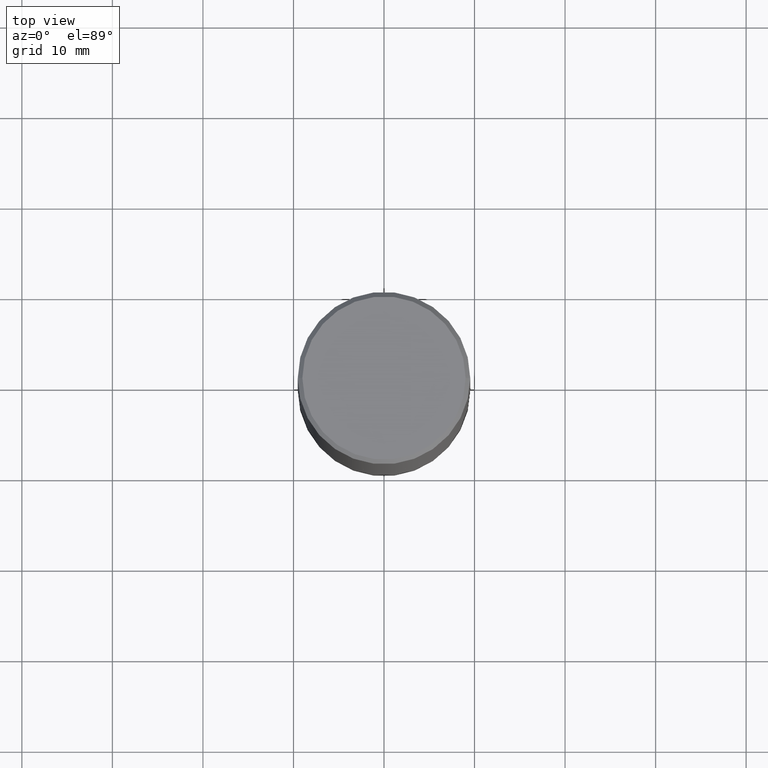
[diagram: clean part render]
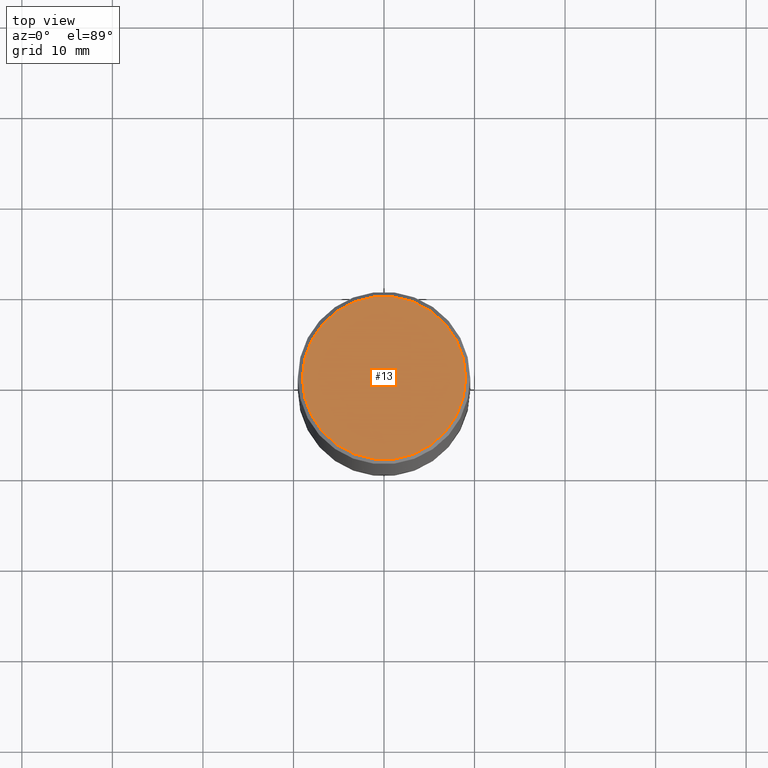
[diagram: same view with one face highlighted and labeled with its STEP entity id]
A machine part, top view. The second image highlights one B-rep face of the part: STEP entity #13.
In plain terms, the highlighted planar face has unit normal (0, -0, -1).
Its self-contained STEP definition (entity closure, byte-faithful):
#13 = ADVANCED_FACE ( 'NONE', ( #243 ), #357, .F. ) ;
#14 = DIRECTION ( 'NONE',  ( -2.445468806185136597E-29, 3.491481338843145583E-15, 1.000000000000000000 ) ) ;
#42 = CARTESIAN_POINT ( 'NONE',  ( -1.043851414335219820E-46, 1.490343170380447200E-32, 4.268512490100411279E-18 ) ) ;
#46 = DIRECTION ( 'NONE',  ( 1.000000000000000000, -6.982962677686265922E-15, 4.876231632511992667E-29 ) ) ;
#73 = DIRECTION ( 'NONE',  ( -1.000000000000000000, 6.982962677686265922E-15, -4.876176775795935793E-29 ) ) ;
#96 = CARTESIAN_POINT ( 'NONE',  ( -1.043851414335219820E-46, 1.490343170380447200E-32, 4.268512490100411279E-18 ) ) ;
#105 = CARTESIAN_POINT ( 'NONE',  ( 2.478951750578621842E-15, 0.3549999999999996492, -1.237341619044265047E-15 ) ) ;
#106 = CARTESIAN_POINT ( 'NONE',  ( 0.3549999999999996492, -2.538996582575038287E-15, 4.268512490117958041E-18 ) ) ;
#107 = VERTEX_POINT ( 'NONE', #255 ) ;
#123 = EDGE_CURVE ( 'NONE', #193, #107, #350, .T. ) ;
#134 = DIRECTION ( 'NONE',  ( 1.000000000000000000, -6.982962677686265922E-15, 4.876231632511992667E-29 ) ) ;
#147 = CIRCLE ( 'NONE', #254, 0.3549999999999996492 ) ;
#162 = DIRECTION ( 'NONE',  ( -2.445468806185136597E-29, 3.491481338843145583E-15, 1.000000000000000000 ) ) ;
#168 = EDGE_LOOP ( 'NONE', ( #251, #358 ) ) ;
#192 = EDGE_CURVE ( 'NONE', #107, #193, #147, .T. ) ;
#193 = VERTEX_POINT ( 'NONE', #106 ) ;
#243 = FACE_OUTER_BOUND ( 'NONE', #168, .T. ) ;
#251 = ORIENTED_EDGE ( 'NONE', *, *, #192, .T. ) ;
#254 = AXIS2_PLACEMENT_3D ( 'NONE', #42, #162, #134 ) ;
#255 = CARTESIAN_POINT ( 'NONE',  ( -0.3549999999999996492, 2.513866563967053097E-15, 4.268512490082953109E-18 ) ) ;
#273 = AXIS2_PLACEMENT_3D ( 'NONE', #105, #329, #73 ) ;
#329 = DIRECTION ( 'NONE',  ( 2.438088387897960049E-29, -3.491481338843145188E-15, -1.000000000000000000 ) ) ;
#339 = AXIS2_PLACEMENT_3D ( 'NONE', #96, #14, #46 ) ;
#350 = CIRCLE ( 'NONE', #339, 0.3549999999999996492 ) ;
#357 = PLANE ( 'NONE',  #273 ) ;
#358 = ORIENTED_EDGE ( 'NONE', *, *, #123, .T. ) ;